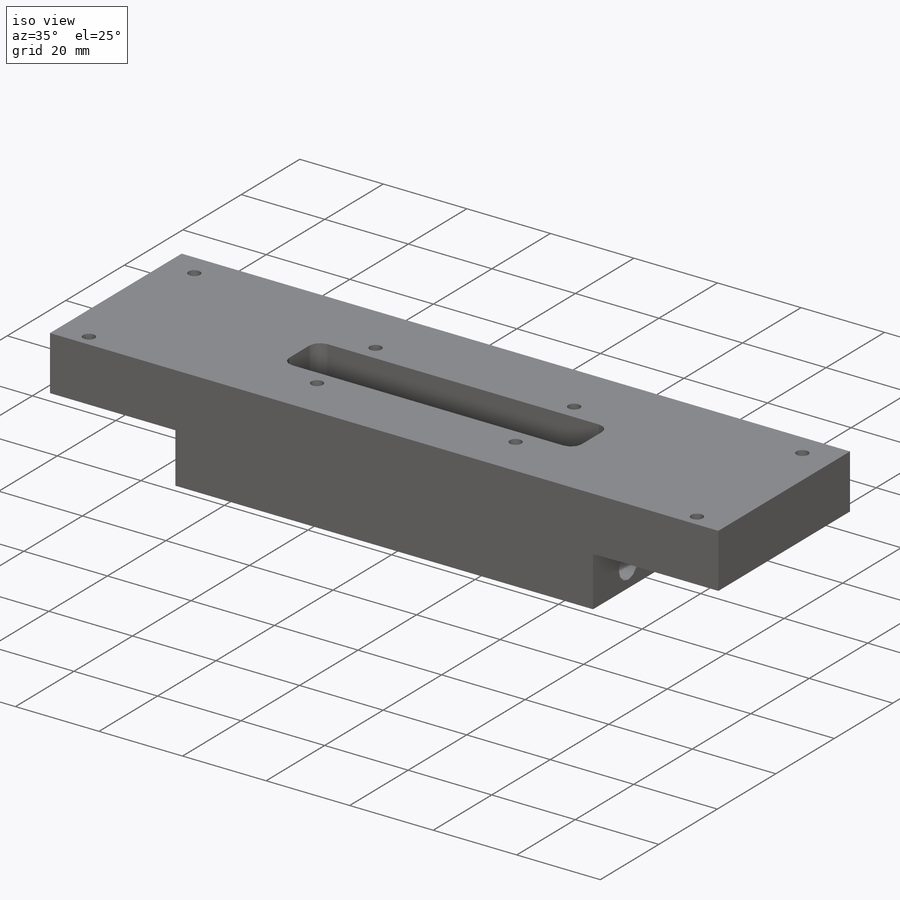
[diagram: iso view]
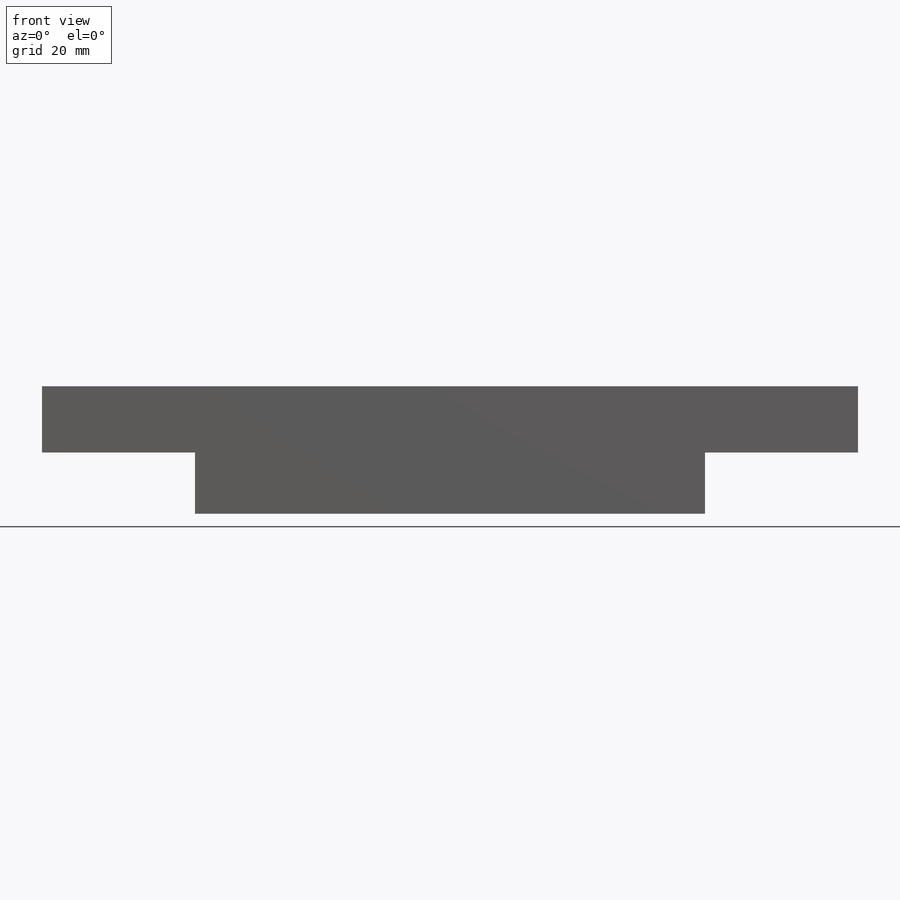
[diagram: front view]
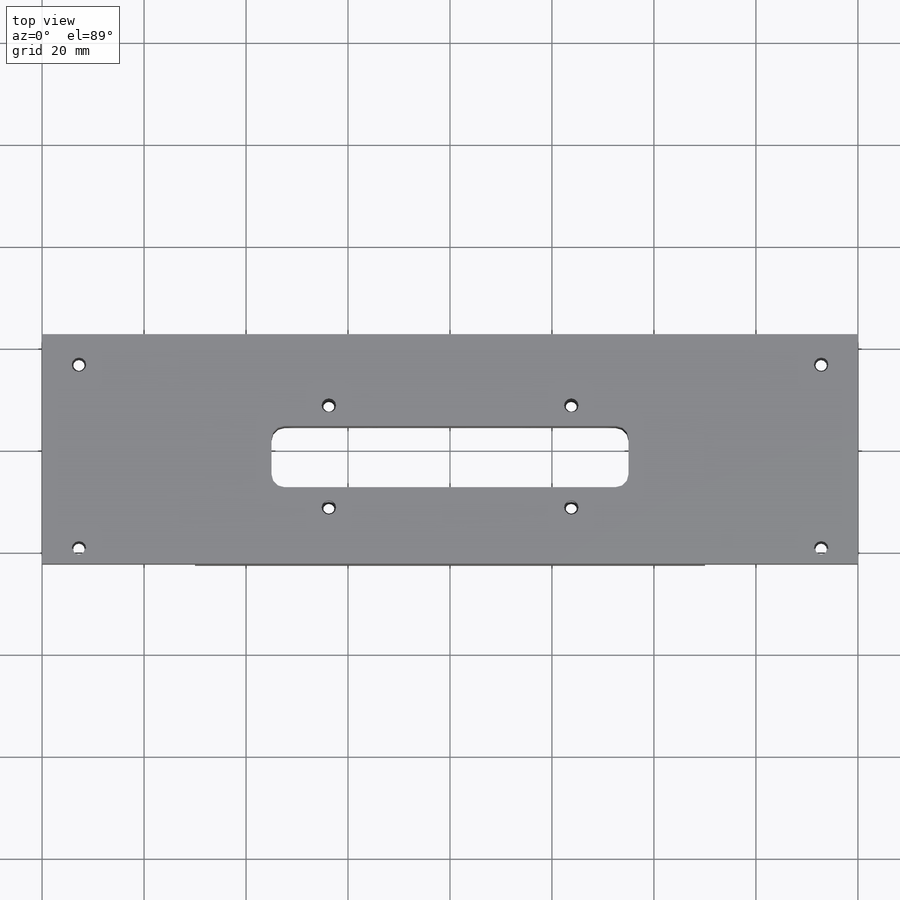
[diagram: top view]
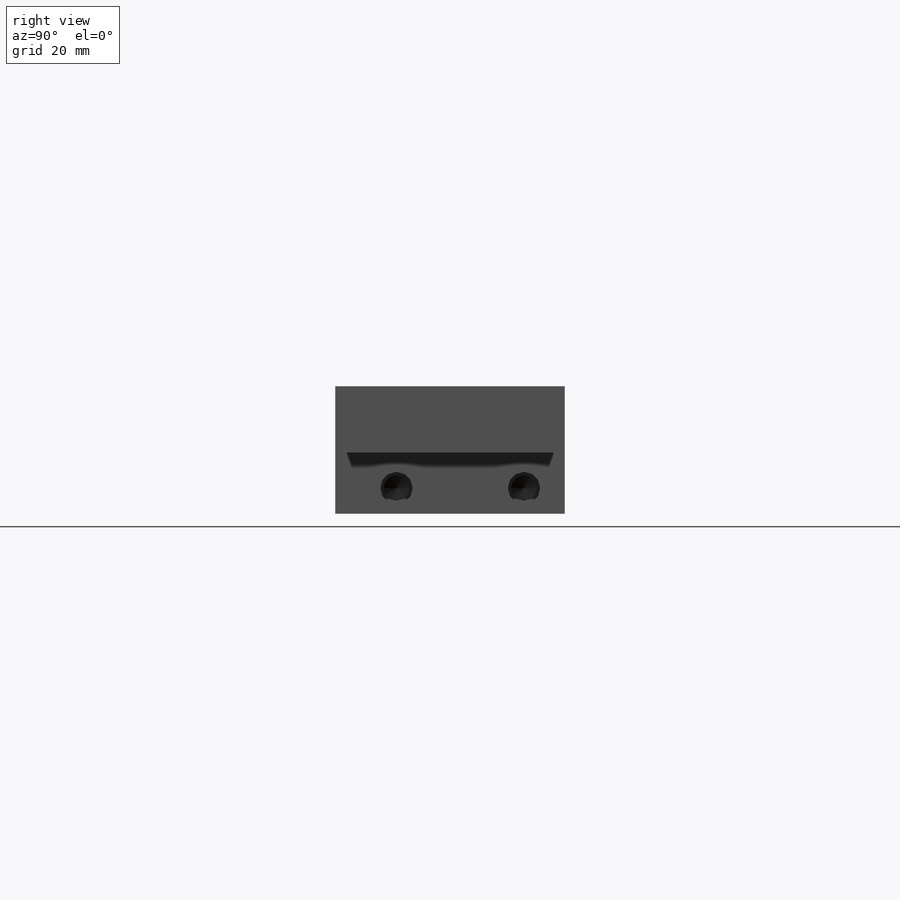
[diagram: right view]
SOLIDWORKS PART (.sldprt)
format: sldprt  version: not decoded by parser v0  size: 387,584 bytes
history: native  units: mm
features: sketch x10, hole x3, mirror x3, extrude x2, plane x2, cut_extrude x2, material x1, fillet x1 + 1 further entry (+13 scaffold rows collapsed)
feature tree (38):
  scaffold x13  (default folders/planes/origin — collapsed)
  material  "6061-T6 Al"
  "Origin"  ID=-1
  sketch  "Sketch1"  dims[D1=80.0mm D2=80.0mm D3=22.5mm D4=22.5mm]
  extrude  "Extrude1"  Depth=13mm
  sketch  "Sketch2"  dims[D1=30.0mm D2=30.0mm]
  extrude  "Extrude2"  Depth=12mm
  plane  "Plane1"
  sketch  "Sketch3"  dims[D1=15.0mm D2=18.0mm D3=35.0mm D4=35.0mm]
  cut_extrude  "Extrude3"  [1 undecoded]
  plane  "Plane2"
  fillet  "Fillet1"  Radius=2.5mm
  hole  "#4-40 Tapped Hole1"  Diameter=2.2606mm Depth=25.3746mm
  sketch  "3DSketch2"  dims[D1=72.77mm D2=18.0mm D3=18.0mm D4=10.0mm D5=10.0mm D6=23.77mm]
  sketch  "Sketch5"  dims[hole-wizard template sketch: 29 standard entries collapsed; hole parameters kept: c8.Tap Drill Depth=25.3746mm c8.Thread Major Dia.=2.8448mm c8.Thread Depth=5.6896mm c8.D5=~14.816244mm c8.Drill Angle=118.0deg]
  mirror  "Mirror1"
  hole  "1/4-20 Tapped Hole1"  Diameter=5.1054mm Depth=20.000011mm
  sketch  "3DSketch3"  dims[c1.D1=8.0mm c1.D2=~26.404417mm c1.D3=~26.404417mm c2.D2=~18.404417mm c2.D3=25.0mm c3.D2=33.0mm c3.D3=7.0mm]
  sketch  "Sketch6"  dims[hole-wizard template sketch: 29 standard entries collapsed; hole parameters kept: c8.Tap Drill Depth=~20.000011mm c8.Thread Major Dia.=6.35mm c8.Thread Depth=12.7mm c8.D5=~14.816244mm c8.Drill Angle=118.0deg]
  sketch  "Sketch7"  dims[D1=1.5mm D2=1.5mm D3=19.0mm D4=8.0mm D5=33.0mm]
  cut_extrude  "Extrude4"  Depth=7mm
  mirror  "Mirror2"
  hole  "#4-40 Tapped Hole2"  Diameter=2.2606mm Depth=20.2946mm
  sketch  "Sketch9"  dims[D1=15.0mm D2=3.0mm]
  sketch  "Sketch8"  dims[hole-wizard template sketch: 29 standard entries collapsed; hole parameters kept: c8.Tap Drill Depth=20.2946mm c8.Thread Major Dia.=2.8448mm c8.Thread Depth=8.2296mm c8.D5=~14.816244mm c8.Drill Angle=118.0deg]
  mirror  "Mirror3"
decode coverage: 17 of 21 modeling features carry decoded parameters; 1 rows unclassified (native names shown)
note: ~ marks probable driven/reference dimensions
note: 1 parameter value undecoded
note: suppression state not decoded; provenance and decode notes live in map.json
